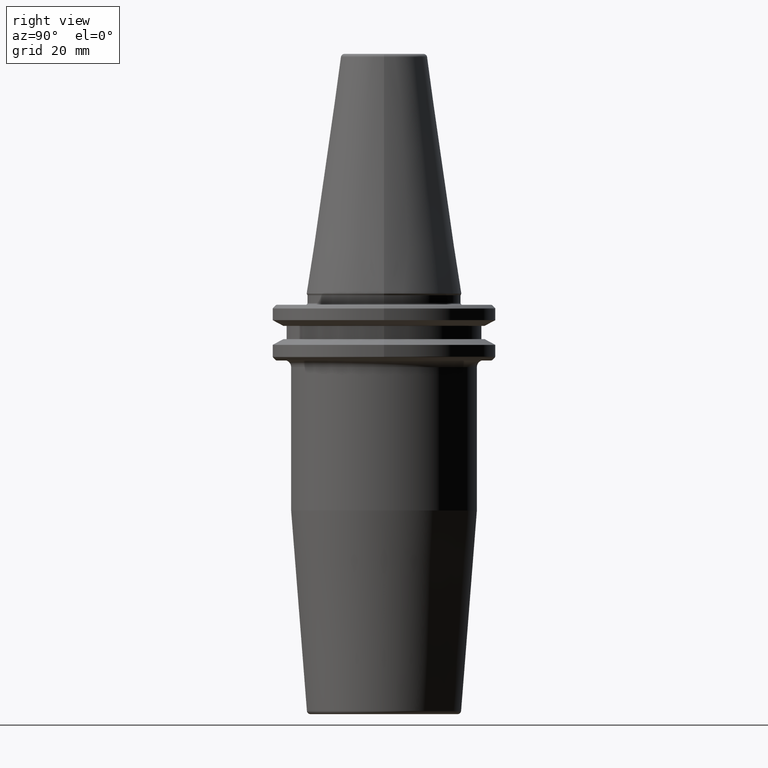
[diagram: clean part render]
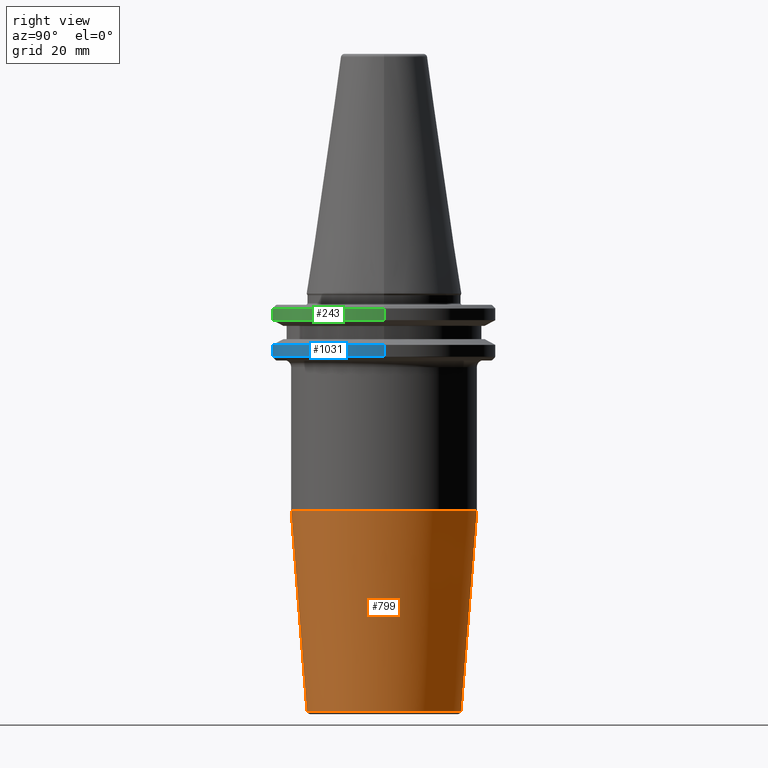
[diagram: same view with three faces highlighted in distinct colors, each labeled with its STEP entity id]
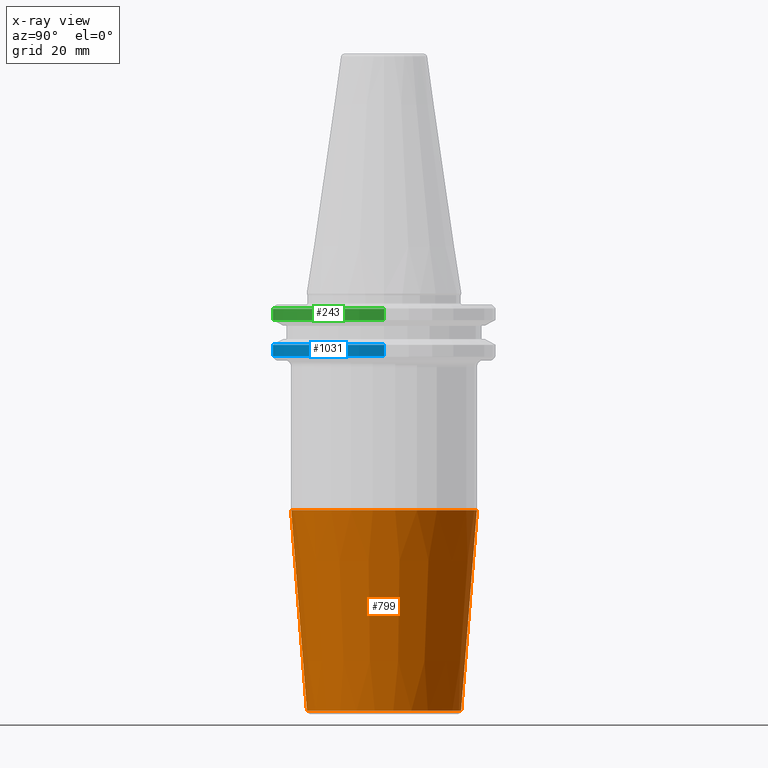
[diagram: x-ray of the same camera — body ghosted, the three highlighted faces saturated]
A machine part, right view with three faces highlighted in distinct colors.
The next image is the same camera in x-ray (body ghosted, the three faces saturated) — at least one of them is partly hidden behind the body in this view.
Their STEP definitions:

[orange] entity #799 — the highlighted conical surface has half-angle 4.5 deg.
#59 = CONICAL_SURFACE ( 'NONE', #852, 21.99999999999999600, 0.07853981633973666800 ) ;
#86 = FACE_OUTER_BOUND ( 'NONE', #473, .T. ) ;
#136 = CARTESIAN_POINT ( 'NONE',  ( 2.694222958124176400E-015, -21.99999999999999300, -119.0784590957278200 ) ) ;
#141 = CARTESIAN_POINT ( 'NONE',  ( 2.694222958124176400E-015, 22.00000000000000000, -119.0784590957278200 ) ) ;
#143 = DIRECTION ( 'NONE',  ( 0.0000000000000000000, 1.000000000000000000, 0.0000000000000000000 ) ) ;
#221 = ORIENTED_EDGE ( 'NONE', *, *, #1207, .T. ) ;
#278 = DIRECTION ( 'NONE',  ( -0.0000000000000000000, 1.946757673717420000E-016, -1.000000000000000000 ) ) ;
#380 = VERTEX_POINT ( 'NONE', #1019 ) ;
#419 = CIRCLE ( 'NONE', #1258, 21.99999999999999600 ) ;
#429 = VECTOR ( 'NONE', #842, 1000.000000000000000 ) ;
#473 = EDGE_LOOP ( 'NONE', ( #921, #947, #221, #533 ) ) ;
#484 = AXIS2_PLACEMENT_3D ( 'NONE', #488, #1139, #577 ) ;
#488 = CARTESIAN_POINT ( 'NONE',  ( 0.0000000000000000000, -8.914585808034279600E-015, -61.90053778293550800 ) ) ;
#507 = EDGE_CURVE ( 'NONE', #380, #641, #419, .T. ) ;
#517 = DIRECTION ( 'NONE',  ( 0.0000000000000000000, -1.946757673717420000E-016, 1.000000000000000000 ) ) ;
#533 = ORIENTED_EDGE ( 'NONE', *, *, #670, .F. ) ;
#550 = VERTEX_POINT ( 'NONE', #622 ) ;
#577 = DIRECTION ( 'NONE',  ( 0.0000000000000000000, 1.000000000000000000, 2.618450529776311800E-016 ) ) ;
#581 = CARTESIAN_POINT ( 'NONE',  ( 3.245314017740487300E-015, 26.50000000000000400, -61.90053778293550100 ) ) ;
#622 = CARTESIAN_POINT ( 'NONE',  ( 0.0000000000000000000, -26.50000000000001800, -61.90053778293551500 ) ) ;
#641 = VERTEX_POINT ( 'NONE', #136 ) ;
#665 = VERTEX_POINT ( 'NONE', #581 ) ;
#668 = CARTESIAN_POINT ( 'NONE',  ( 0.0000000000000000000, 2.216569900254646700E-015, -119.0784590957278200 ) ) ;
#670 = EDGE_CURVE ( 'NONE', #641, #550, #945, .T. ) ;
#692 = LINE ( 'NONE', #141, #429 ) ;
#693 = DIRECTION ( 'NONE',  ( 0.0000000000000000000, -0.07845909572783700500, 0.9969173337331285200 ) ) ;
#694 = VECTOR ( 'NONE', #693, 1000.000000000000100 ) ;
#799 = ADVANCED_FACE ( 'NONE', ( #86 ), #59, .T. ) ;
#840 = CARTESIAN_POINT ( 'NONE',  ( 0.0000000000000000000, -21.99999999999999300, -119.0784590957278200 ) ) ;
#842 = DIRECTION ( 'NONE',  ( 9.608468044709112000E-018, 0.07845909572783661700, 0.9969173337331286300 ) ) ;
#852 = AXIS2_PLACEMENT_3D ( 'NONE', #1180, #517, #864 ) ;
#864 = DIRECTION ( 'NONE',  ( 0.0000000000000000000, -1.000000000000000000, 0.0000000000000000000 ) ) ;
#921 = ORIENTED_EDGE ( 'NONE', *, *, #507, .F. ) ;
#945 = LINE ( 'NONE', #840, #694 ) ;
#947 = ORIENTED_EDGE ( 'NONE', *, *, #1096, .T. ) ;
#1019 = CARTESIAN_POINT ( 'NONE',  ( 0.0000000000000000000, 22.00000000000000000, -119.0784590957278200 ) ) ;
#1073 = CIRCLE ( 'NONE', #484, 26.50000000000000700 ) ;
#1096 = EDGE_CURVE ( 'NONE', #380, #665, #692, .T. ) ;
#1139 = DIRECTION ( 'NONE',  ( -0.0000000000000000000, 1.946757673717420000E-016, -1.000000000000000000 ) ) ;
#1180 = CARTESIAN_POINT ( 'NONE',  ( 0.0000000000000000000, 2.216569900254646700E-015, -119.0784590957278200 ) ) ;
#1207 = EDGE_CURVE ( 'NONE', #665, #550, #1073, .T. ) ;
#1258 = AXIS2_PLACEMENT_3D ( 'NONE', #668, #278, #143 ) ;

[blue] entity #1031 — the highlighted cylindrical surface (partial cylindrical patch) has radius 31.75 mm, axis along (-0, -0, 1).
#4 = ORIENTED_EDGE ( 'NONE', *, *, #535, .F. ) ;
#27 = DIRECTION ( 'NONE',  ( -0.0000000000000000000, -0.0000000000000000000, 1.000000000000000000 ) ) ;
#47 = DIRECTION ( 'NONE',  ( -0.0000000000000000000, -0.0000000000000000000, 1.000000000000000000 ) ) ;
#48 = DIRECTION ( 'NONE',  ( -0.0000000000000000000, -0.0000000000000000000, 1.000000000000000000 ) ) ;
#134 = CARTESIAN_POINT ( 'NONE',  ( 0.0000000000000000000, 0.0000000000000000000, -17.93431457505076300 ) ) ;
#159 = CIRCLE ( 'NONE', #263, 31.75000000000000000 ) ;
#226 = DIRECTION ( 'NONE',  ( -0.0000000000000000000, -0.0000000000000000000, 1.000000000000000000 ) ) ;
#263 = AXIS2_PLACEMENT_3D ( 'NONE', #134, #226, #332 ) ;
#276 = DIRECTION ( 'NONE',  ( -0.0000000000000000000, -0.0000000000000000000, 1.000000000000000000 ) ) ;
#332 = DIRECTION ( 'NONE',  ( 1.000000000000000000, 0.0000000000000000000, 0.0000000000000000000 ) ) ;
#394 = VECTOR ( 'NONE', #276, 1000.000000000000000 ) ;
#514 = EDGE_CURVE ( 'NONE', #720, #1136, #649, .T. ) ;
#535 = EDGE_CURVE ( 'NONE', #579, #1090, #1142, .T. ) ;
#558 = EDGE_LOOP ( 'NONE', ( #4, #1080, #635, #950 ) ) ;
#579 = VERTEX_POINT ( 'NONE', #986 ) ;
#635 = ORIENTED_EDGE ( 'NONE', *, *, #514, .T. ) ;
#642 = CARTESIAN_POINT ( 'NONE',  ( 0.0000000000000000000, 0.0000000000000000000, 113.5216080541959500 ) ) ;
#649 = LINE ( 'NONE', #690, #394 ) ;
#654 = CARTESIAN_POINT ( 'NONE',  ( 31.75000000000000000, 0.0000000000000000000, -14.62183664205671200 ) ) ;
#655 = CARTESIAN_POINT ( 'NONE',  ( 0.0000000000000000000, 0.0000000000000000000, -14.62183664205671200 ) ) ;
#690 = CARTESIAN_POINT ( 'NONE',  ( 31.75000000000000000, 0.0000000000000000000, 113.5216080541959500 ) ) ;
#695 = AXIS2_PLACEMENT_3D ( 'NONE', #642, #27, #1196 ) ;
#720 = VERTEX_POINT ( 'NONE', #989 ) ;
#734 = EDGE_CURVE ( 'NONE', #579, #720, #159, .T. ) ;
#750 = CARTESIAN_POINT ( 'NONE',  ( -31.75000000000000000, 3.888253587292846500E-015, 113.5216080541959500 ) ) ;
#755 = DIRECTION ( 'NONE',  ( 1.000000000000000000, 0.0000000000000000000, 0.0000000000000000000 ) ) ;
#883 = VECTOR ( 'NONE', #48, 1000.000000000000000 ) ;
#912 = CIRCLE ( 'NONE', #1129, 31.75000000000000000 ) ;
#950 = ORIENTED_EDGE ( 'NONE', *, *, #1137, .F. ) ;
#964 = FACE_OUTER_BOUND ( 'NONE', #558, .T. ) ;
#967 = CYLINDRICAL_SURFACE ( 'NONE', #695, 31.75000000000000000 ) ;
#986 = CARTESIAN_POINT ( 'NONE',  ( -31.75000000000000000, 3.888253587292846500E-015, -17.93431457505076300 ) ) ;
#989 = CARTESIAN_POINT ( 'NONE',  ( 31.75000000000000000, 0.0000000000000000000, -17.93431457505076300 ) ) ;
#1031 = ADVANCED_FACE ( 'NONE', ( #964 ), #967, .T. ) ;
#1080 = ORIENTED_EDGE ( 'NONE', *, *, #734, .T. ) ;
#1090 = VERTEX_POINT ( 'NONE', #1203 ) ;
#1129 = AXIS2_PLACEMENT_3D ( 'NONE', #655, #47, #755 ) ;
#1136 = VERTEX_POINT ( 'NONE', #654 ) ;
#1137 = EDGE_CURVE ( 'NONE', #1090, #1136, #912, .T. ) ;
#1142 = LINE ( 'NONE', #750, #883 ) ;
#1196 = DIRECTION ( 'NONE',  ( 1.000000000000000000, 0.0000000000000000000, 0.0000000000000000000 ) ) ;
#1203 = CARTESIAN_POINT ( 'NONE',  ( -31.75000000000000000, 3.888253587292846500E-015, -14.62183664205671200 ) ) ;

[green] entity #243 — the highlighted cylindrical surface (partial cylindrical patch) has radius 31.75 mm, axis along (-0, -0, 1).
#106 = EDGE_LOOP ( 'NONE', ( #493, #156, #977, #574 ) ) ;
#107 = EDGE_CURVE ( 'NONE', #236, #1147, #1026, .T. ) ;
#142 = CIRCLE ( 'NONE', #844, 31.75000000000000000 ) ;
#156 = ORIENTED_EDGE ( 'NONE', *, *, #172, .T. ) ;
#172 = EDGE_CURVE ( 'NONE', #236, #481, #698, .T. ) ;
#205 = DIRECTION ( 'NONE',  ( 1.000000000000000000, 0.0000000000000000000, 0.0000000000000000000 ) ) ;
#223 = AXIS2_PLACEMENT_3D ( 'NONE', #1124, #1098, #1224 ) ;
#236 = VERTEX_POINT ( 'NONE', #768 ) ;
#243 = ADVANCED_FACE ( 'NONE', ( #663 ), #606, .T. ) ;
#260 = DIRECTION ( 'NONE',  ( 1.000000000000000000, 0.0000000000000000000, 0.0000000000000000000 ) ) ;
#287 = CARTESIAN_POINT ( 'NONE',  ( 31.75000000000000000, 0.0000000000000000000, -7.578163357943284800 ) ) ;
#292 = DIRECTION ( 'NONE',  ( -0.0000000000000000000, -0.0000000000000000000, 1.000000000000000000 ) ) ;
#333 = CARTESIAN_POINT ( 'NONE',  ( 31.75000000000000000, 0.0000000000000000000, -4.365685424949250000 ) ) ;
#353 = AXIS2_PLACEMENT_3D ( 'NONE', #1231, #937, #205 ) ;
#441 = VERTEX_POINT ( 'NONE', #333 ) ;
#464 = CARTESIAN_POINT ( 'NONE',  ( -31.75000000000000000, 3.888253587292846500E-015, -4.365685424949250000 ) ) ;
#481 = VERTEX_POINT ( 'NONE', #287 ) ;
#493 = ORIENTED_EDGE ( 'NONE', *, *, #107, .F. ) ;
#523 = EDGE_CURVE ( 'NONE', #1147, #441, #142, .T. ) ;
#545 = VECTOR ( 'NONE', #292, 1000.000000000000000 ) ;
#574 = ORIENTED_EDGE ( 'NONE', *, *, #523, .F. ) ;
#606 = CYLINDRICAL_SURFACE ( 'NONE', #353, 31.75000000000000000 ) ;
#663 = FACE_OUTER_BOUND ( 'NONE', #106, .T. ) ;
#698 = CIRCLE ( 'NONE', #223, 31.75000000000000000 ) ;
#768 = CARTESIAN_POINT ( 'NONE',  ( -31.75000000000000000, 3.888253587292846500E-015, -7.578163357943284800 ) ) ;
#841 = EDGE_CURVE ( 'NONE', #481, #441, #1257, .T. ) ;
#844 = AXIS2_PLACEMENT_3D ( 'NONE', #870, #1048, #260 ) ;
#870 = CARTESIAN_POINT ( 'NONE',  ( 0.0000000000000000000, 0.0000000000000000000, -4.365685424949250000 ) ) ;
#931 = DIRECTION ( 'NONE',  ( -0.0000000000000000000, -0.0000000000000000000, 1.000000000000000000 ) ) ;
#937 = DIRECTION ( 'NONE',  ( -0.0000000000000000000, -0.0000000000000000000, 1.000000000000000000 ) ) ;
#975 = CARTESIAN_POINT ( 'NONE',  ( 31.75000000000000000, 0.0000000000000000000, 113.5216080541959500 ) ) ;
#977 = ORIENTED_EDGE ( 'NONE', *, *, #841, .T. ) ;
#1000 = CARTESIAN_POINT ( 'NONE',  ( -31.75000000000000000, 3.888253587292846500E-015, 113.5216080541959500 ) ) ;
#1026 = LINE ( 'NONE', #1000, #1228 ) ;
#1048 = DIRECTION ( 'NONE',  ( -0.0000000000000000000, -0.0000000000000000000, 1.000000000000000000 ) ) ;
#1098 = DIRECTION ( 'NONE',  ( -0.0000000000000000000, -0.0000000000000000000, 1.000000000000000000 ) ) ;
#1124 = CARTESIAN_POINT ( 'NONE',  ( 0.0000000000000000000, 0.0000000000000000000, -7.578163357943284800 ) ) ;
#1147 = VERTEX_POINT ( 'NONE', #464 ) ;
#1224 = DIRECTION ( 'NONE',  ( 1.000000000000000000, 0.0000000000000000000, 0.0000000000000000000 ) ) ;
#1228 = VECTOR ( 'NONE', #931, 1000.000000000000000 ) ;
#1231 = CARTESIAN_POINT ( 'NONE',  ( 0.0000000000000000000, 0.0000000000000000000, 113.5216080541959500 ) ) ;
#1257 = LINE ( 'NONE', #975, #545 ) ;